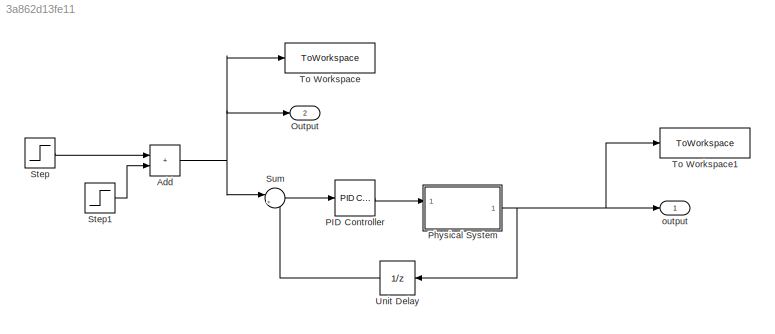
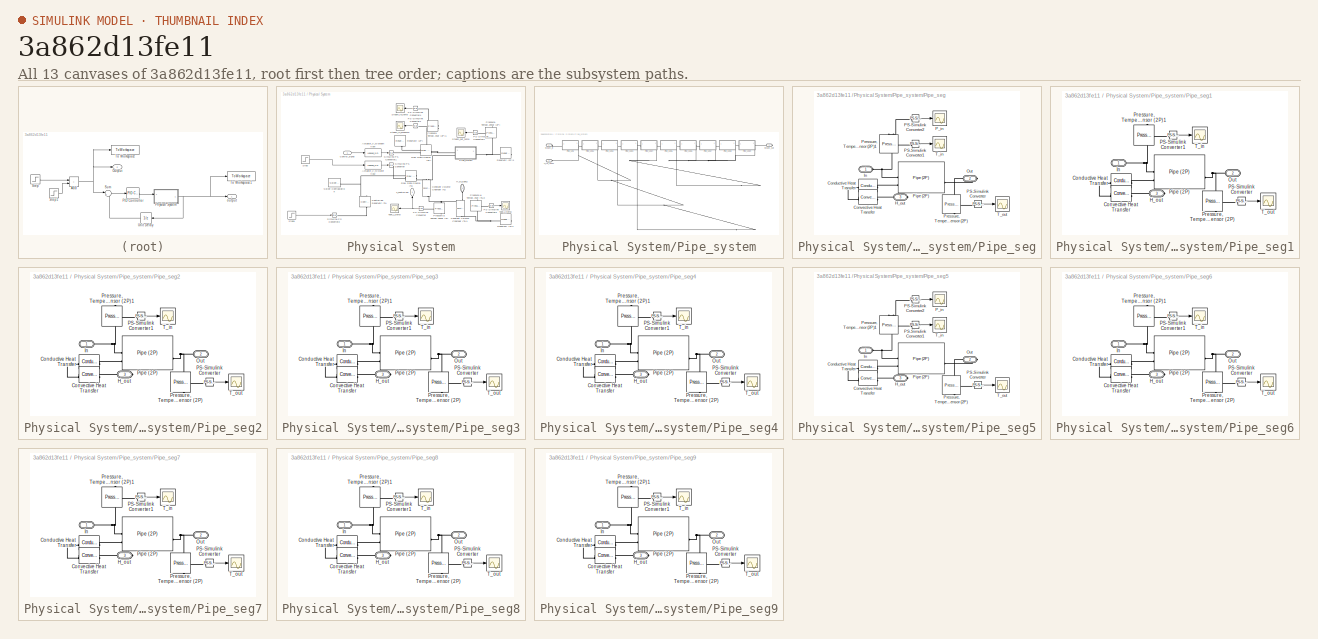
[diagram: thumbnail index - all 13 canvases of the model, root first then tree order]
MODEL slx_3a862d13fe11
KIND model
CONFIG AbsTol = 1e-3
CONFIG EnableMultiTasking = off
CONFIG FixedStep = auto
CONFIG MaxStep = auto
CONFIG MinStep = auto
CONFIG RelTol = 1e-3
CONFIG SampleTimeConstraint = Unconstrained
CONFIG SolverName = ode15s
CONFIG StartTime = 0.0
CONFIG StopTime = 28000
WORKSPACE source: mxarray member
WORKSPACE KC = 0.489262486694
WORKSPACE KI = 0.00370274255893
WORKSPACE Param: Simulink.Parameter (value not decoded)
WORKSPACE h_con_outer = 1250
WORKSPACE k_cond_pipe = 400
WORKSPACE num = 10
WORKSPACE pipe_len = 6.34
WORKSPACE pipe_thick = 0.001
WORKSPACE r_outer = 0.00525
WORKSPACE steam_qual = 0.95
WORKSPACE vap_tconstant = 10
WORKSPACE vol_liq = 24
WORKSPACE water_temp_cold = 20
WORKSPACE water_temp_in = 26
BLOCK [Sum] Add
  IconShape = rectangular
BLOCK [Outport] Output
  Port = 2
  SignalName = SetPoint
BLOCK [Reference] PID Controller  REF=slpidlib/PID Controller
  LibrarySourceBlock = simulink/Continuous/PID Controller
  SourceBlock = slpidlib/PID Controller
  SourceType = PID 1dof
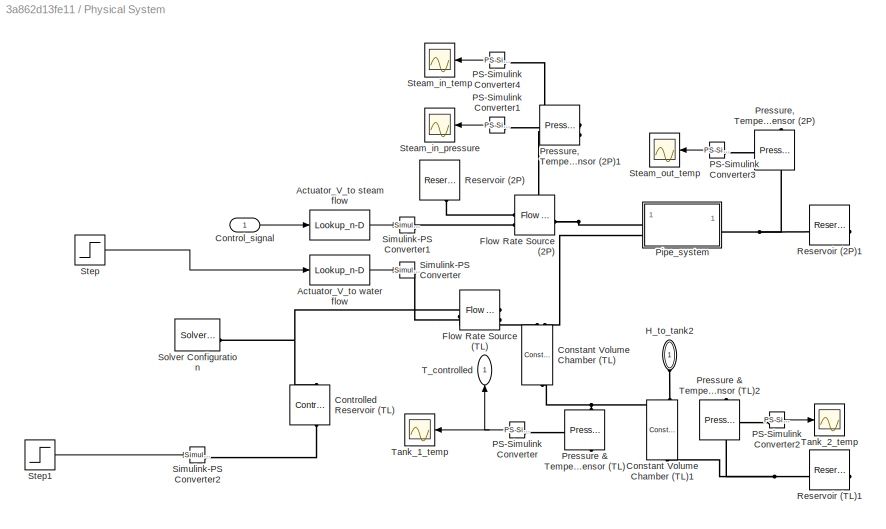
BLOCK [SubSystem] Physical System
BLOCK [Lookup_n-D] Physical System/Actuator_V_to steam flow
  BreakpointsForDimension1 = [1.5 1.75 2.0 2.25 2.5 2.75 3.0]
  InputPortMap = u0
  InternalRulePriority = Speed
  NumberOfTableDimensions = 1
  RndMeth = Simplest
  Table = [0 12.56 41.25 71 117 129 141.08]
BLOCK [Lookup_n-D] Physical System/Actuator_V_to water flow
  BreakpointsForDimension1 = [1.25 1.5 1.75 2.0 2.25 2.5 2.75 3]
  InputPortMap = u0
  InternalRulePriority = Speed
  NumberOfTableDimensions = 1
  RndMeth = Simplest
  Table = [0 1.1 2.04 3.37 4.81 5.79 6.23 6.41]
BLOCK [Reference] Physical System/Constant Volume Chamber (TL)  REF=fl_lib/Thermal Liquid/Elements/Constant Volume
Chamber (TL)
  NameLocation = right
  SourceBlock = fl_lib/Thermal Liquid/Elements/Constant Volume\nChamber (TL)
  SourceType = Constant Volume\nChamber (TL)
BLOCK [Reference] Physical System/Constant Volume Chamber (TL)1  REF=fl_lib/Thermal Liquid/Elements/Constant Volume
Chamber (TL)
  NameLocation = right
  SourceBlock = fl_lib/Thermal Liquid/Elements/Constant Volume\nChamber (TL)
  SourceType = Constant Volume\nChamber (TL)
BLOCK [Inport] Physical System/Control_signal
BLOCK [Reference] Physical System/Controlled Reservoir (TL)  REF=fl_lib/Thermal Liquid/Elements/Controlled Reservoir
(TL)
  NameLocation = right
  SourceBlock = fl_lib/Thermal Liquid/Elements/Controlled Reservoir\n(TL)
  SourceType = Controlled Reservoir\n(TL)
BLOCK [Reference] Physical System/Flow Rate Source (2P)  REF=fl_lib/Two-Phase Fluid/Sources/Flow Rate Source
(2P)
  SourceBlock = fl_lib/Two-Phase Fluid/Sources/Flow Rate Source\n(2P)
  SourceType = Flow Rate Source\n(2P)
BLOCK [Reference] Physical System/Flow Rate Source (TL)  REF=fl_lib/Thermal Liquid/Sources/Flow Rate Source
(TL)
  SourceBlock = fl_lib/Thermal Liquid/Sources/Flow Rate Source\n(TL)
  SourceType = Flow Rate Source\n(TL)
BLOCK [PMIOPort] Physical System/H_to_tank2
  NameLocation = top
  Side = Left
BLOCK [Reference] Physical System/PS-Simulink Converter  REF=nesl_utility/PS-Simulink
Converter
  NameLocation = left
  SourceBlock = nesl_utility/PS-Simulink\nConverter
  SourceType = PS-Simulink\nConverter
BLOCK [Reference] Physical System/PS-Simulink Converter1  REF=nesl_utility/PS-Simulink
Converter
  SourceBlock = nesl_utility/PS-Simulink\nConverter
  SourceType = PS-Simulink\nConverter
BLOCK [Reference] Physical System/PS-Simulink Converter2  REF=nesl_utility/PS-Simulink
Converter
  NameLocation = right
  SourceBlock = nesl_utility/PS-Simulink\nConverter
  SourceType = PS-Simulink\nConverter
BLOCK [Reference] Physical System/PS-Simulink Converter3  REF=nesl_utility/PS-Simulink
Converter
  SourceBlock = nesl_utility/PS-Simulink\nConverter
  SourceType = PS-Simulink\nConverter
BLOCK [Reference] Physical System/PS-Simulink Converter4  REF=nesl_utility/PS-Simulink
Converter
  SourceBlock = nesl_utility/PS-Simulink\nConverter
  SourceType = PS-Simulink\nConverter
BLOCK [SubSystem] Physical System/Pipe_system
BLOCK [PMIOPort] Physical System/Pipe_system/H_to_tank1
  Port = 3
  Side = Left
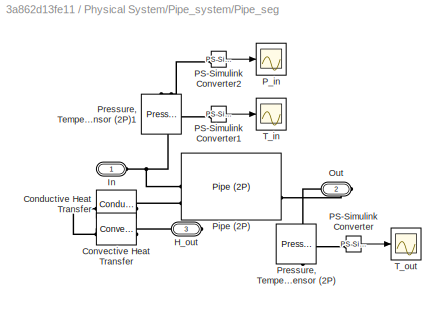
BLOCK [SubSystem] Physical System/Pipe_system/Pipe_seg
  PortSchema = {"entries":[{"content":{"sides":[{"content":{"connectorIds":["LConn1"]},"type":"ConnectorPlacement.EquallySpacedRectSide","uuid":"87d762fd-5aab-4e06-9f00-0f31156aff8f"},{"content":{"connectorIds":["RConn1"],"side":"RIGHT"},"type":"ConnectorPlacement.EquallySpacedRectSide","uuid":"41caf200-f502-42ca-8e97-d54e4cd27955"},{"content":{"side":"TOP"},"type":"ConnectorPlacement.EquallySpacedRectSide","uui...<+379ch>  <repeated x10 — deduplicated; at blocks: Pipe_seg, Pipe_seg1, Pipe_seg2, Pipe_seg3, Pipe_seg4, Pipe_seg5, Pipe_seg6, Pipe_seg7, Pipe_seg8, Pipe_seg9>
BLOCK [Reference] Physical System/Pipe_system/Pipe_seg/Conductive Heat Transfer  REF=fl_lib/Thermal/Thermal Elements/Conductive Heat
Transfer
  SourceBlock = fl_lib/Thermal/Thermal Elements/Conductive Heat\nTransfer
  SourceType = Conductive Heat\nTransfer
BLOCK [Reference] Physical System/Pipe_system/Pipe_seg/Convective Heat Transfer  REF=fl_lib/Thermal/Thermal Elements/Convective Heat
Transfer
  NameLocation = top
  SourceBlock = fl_lib/Thermal/Thermal Elements/Convective Heat\nTransfer
  SourceType = Convective Heat\nTransfer
BLOCK [PMIOPort] Physical System/Pipe_system/Pipe_seg/H_out
  Port = 3
  Side = Right
BLOCK [PMIOPort] Physical System/Pipe_system/Pipe_seg/In
  Side = Left
BLOCK [PMIOPort] Physical System/Pipe_system/Pipe_seg/Out
  Port = 2
  Side = Right
BLOCK [Reference] Physical System/Pipe_system/Pipe_seg/PS-Simulink Converter  REF=nesl_utility/PS-Simulink
Converter
  SourceBlock = nesl_utility/PS-Simulink\nConverter
  SourceType = PS-Simulink\nConverter
BLOCK [Reference] Physical System/Pipe_system/Pipe_seg/PS-Simulink Converter1  REF=nesl_utility/PS-Simulink
Converter
  SourceBlock = nesl_utility/PS-Simulink\nConverter
  SourceType = PS-Simulink\nConverter
BLOCK [Reference] Physical System/Pipe_system/Pipe_seg/PS-Simulink Converter2  REF=nesl_utility/PS-Simulink
Converter
  SourceBlock = nesl_utility/PS-Simulink\nConverter
  SourceType = PS-Simulink\nConverter
BLOCK [Scope] Physical System/Pipe_system/Pipe_seg/P_in
  Floating = off
  NumInputPorts = 1
  ScopeSpecificationString = Simulink.scopes.TimeScopeBlockCfg('CurrentConfiguration', extmgr.ConfigurationSet(extmgr.Configuration('Core','General UI',true),extmgr.Configuration('Core','Source UI',true),extmgr.Configuration('Sources','WiredSimulink',true,'DataLoggingVariableName','ScopeData5'),extmgr.Configuration('Visuals','Time Domain',true,'SerializedDisplays',{struct('MinYLimReal','101.30744','MaxYLimReal','101.48437','Y...<+1565ch>
BLOCK [Reference] Physical System/Pipe_system/Pipe_seg/Pipe (2P)  REF=fl_lib/Two-Phase Fluid/Elements/Pipe (2P)
  SourceBlock = fl_lib/Two-Phase Fluid/Elements/Pipe (2P)
  SourceType = Pipe (2P)
BLOCK [Reference] Physical System/Pipe_system/Pipe_seg/Pressure, Temperature & Internal Energy Sensor (2P)  REF=fl_lib/Two-Phase Fluid/Sensors/Pressure,
Temperature &
Internal Energy
Sensor (2P)
  NameLocation = right
  SourceBlock = fl_lib/Two-Phase Fluid/Sensors/Pressure,\nTemperature &\nInternal Energy\nSensor (2P)
  SourceType = Pressure,\nTemperature &\nInternal Energy\nSensor (2P)
BLOCK [Reference] Physical System/Pipe_system/Pipe_seg/Pressure, Temperature & Internal Energy Sensor (2P)1  REF=fl_lib/Two-Phase Fluid/Sensors/Pressure,
Temperature &
Internal Energy
Sensor (2P)
  NameLocation = right
  SourceBlock = fl_lib/Two-Phase Fluid/Sensors/Pressure,\nTemperature &\nInternal Energy\nSensor (2P)
  SourceType = Pressure,\nTemperature &\nInternal Energy\nSensor (2P)
BLOCK [Scope] Physical System/Pipe_system/Pipe_seg/T_in
  Floating = off
  NumInputPorts = 1
  ScopeSpecificationString = Simulink.scopes.TimeScopeBlockCfg('CurrentConfiguration', extmgr.ConfigurationSet(extmgr.Configuration('Core','General UI',true),extmgr.Configuration('Core','Source UI',true),extmgr.Configuration('Sources','WiredSimulink',true,'DataLoggingVariableName','ScopeData6'),extmgr.Configuration('Visuals','Time Domain',true,'SerializedDisplays',{struct('MinYLimReal','99.66979','MaxYLimReal','102.56528','YL...<+1561ch>
BLOCK [Scope] Physical System/Pipe_system/Pipe_seg/T_out
  Floating = off
  NumInputPorts = 1
  ScopeSpecificationString = Simulink.scopes.TimeScopeBlockCfg('CurrentConfiguration', extmgr.ConfigurationSet(extmgr.Configuration('Core','General UI',true),extmgr.Configuration('Core','Source UI',true),extmgr.Configuration('Sources','WiredSimulink',true,'DataLoggingVariableName','ScopeData1'),extmgr.Configuration('Visuals','Time Domain',true,'SerializedDisplays',{struct('MinYLimReal','77.50383','MaxYLimReal','102.46551','YL...<+1560ch>
BLOCK [SubSystem] Physical System/Pipe_system/Pipe_seg1
BLOCK [Reference] Physical System/Pipe_system/Pipe_seg1/Conductive Heat Transfer  REF=fl_lib/Thermal/Thermal Elements/Conductive Heat
Transfer
  SourceBlock = fl_lib/Thermal/Thermal Elements/Conductive Heat\nTransfer
  SourceType = Conductive Heat\nTransfer
BLOCK [Reference] Physical System/Pipe_system/Pipe_seg1/Convective Heat Transfer  REF=fl_lib/Thermal/Thermal Elements/Convective Heat
Transfer
  NameLocation = top
  SourceBlock = fl_lib/Thermal/Thermal Elements/Convective Heat\nTransfer
  SourceType = Convective Heat\nTransfer
BLOCK [PMIOPort] Physical System/Pipe_system/Pipe_seg1/H_out
  Port = 3
  Side = Right
BLOCK [PMIOPort] Physical System/Pipe_system/Pipe_seg1/In
  Side = Left
BLOCK [PMIOPort] Physical System/Pipe_system/Pipe_seg1/Out
  Port = 2
  Side = Right
BLOCK [Reference] Physical System/Pipe_system/Pipe_seg1/PS-Simulink Converter  REF=nesl_utility/PS-Simulink
Converter
  SourceBlock = nesl_utility/PS-Simulink\nConverter
  SourceType = PS-Simulink\nConverter
BLOCK [Reference] Physical System/Pipe_system/Pipe_seg1/PS-Simulink Converter1  REF=nesl_utility/PS-Simulink
Converter
  SourceBlock = nesl_utility/PS-Simulink\nConverter
  SourceType = PS-Simulink\nConverter
BLOCK [Reference] Physical System/Pipe_system/Pipe_seg1/Pipe (2P)  REF=fl_lib/Two-Phase Fluid/Elements/Pipe (2P)
  SourceBlock = fl_lib/Two-Phase Fluid/Elements/Pipe (2P)
  SourceType = Pipe (2P)
BLOCK [Reference] Physical System/Pipe_system/Pipe_seg1/Pressure, Temperature & Internal Energy Sensor (2P)  REF=fl_lib/Two-Phase Fluid/Sensors/Pressure,
Temperature &
Internal Energy
Sensor (2P)
  NameLocation = right
  SourceBlock = fl_lib/Two-Phase Fluid/Sensors/Pressure,\nTemperature &\nInternal Energy\nSensor (2P)
  SourceType = Pressure,\nTemperature &\nInternal Energy\nSensor (2P)
BLOCK [Reference] Physical System/Pipe_system/Pipe_seg1/Pressure, Temperature & Internal Energy Sensor (2P)1  REF=fl_lib/Two-Phase Fluid/Sensors/Pressure,
Temperature &
Internal Energy
Sensor (2P)
  NameLocation = right
  SourceBlock = fl_lib/Two-Phase Fluid/Sensors/Pressure,\nTemperature &\nInternal Energy\nSensor (2P)
  SourceType = Pressure,\nTemperature &\nInternal Energy\nSensor (2P)
BLOCK [Scope] Physical System/Pipe_system/Pipe_seg1/T_in
  Floating = off
  NumInputPorts = 1
  ScopeSpecificationString = Simulink.scopes.TimeScopeBlockCfg('CurrentConfiguration', extmgr.ConfigurationSet(extmgr.Configuration('Core','General UI',true),extmgr.Configuration('Core','Source UI',true),extmgr.Configuration('Sources','WiredSimulink',true,'DataLoggingVariableName','ScopeData6'),extmgr.Configuration('Visuals','Time Domain',true,'SerializedDisplays',{struct('MinYLimReal','77.50383','MaxYLimReal','102.46551','YL...<+1561ch>
BLOCK [Scope] Physical System/Pipe_system/Pipe_seg1/T_out
  Floating = off
  NumInputPorts = 1
  ScopeSpecificationString = Simulink.scopes.TimeScopeBlockCfg('CurrentConfiguration', extmgr.ConfigurationSet(extmgr.Configuration('Core','General UI',true),extmgr.Configuration('Core','Source UI',true),extmgr.Configuration('Sources','WiredSimulink',true,'DataLoggingVariableName','ScopeData1'),extmgr.Configuration('Visuals','Time Domain',true,'SerializedDisplays',{struct('MinYLimReal','38.29819','MaxYLimReal','84.63353','YLa...<+1600ch>
BLOCK [SubSystem] Physical System/Pipe_system/Pipe_seg2
BLOCK [Reference] Physical System/Pipe_system/Pipe_seg2/Conductive Heat Transfer  REF=fl_lib/Thermal/Thermal Elements/Conductive Heat
Transfer
  SourceBlock = fl_lib/Thermal/Thermal Elements/Conductive Heat\nTransfer
  SourceType = Conductive Heat\nTransfer
BLOCK [Reference] Physical System/Pipe_system/Pipe_seg2/Convective Heat Transfer  REF=fl_lib/Thermal/Thermal Elements/Convective Heat
Transfer
  NameLocation = top
  SourceBlock = fl_lib/Thermal/Thermal Elements/Convective Heat\nTransfer
  SourceType = Convective Heat\nTransfer
BLOCK [PMIOPort] Physical System/Pipe_system/Pipe_seg2/H_out
  Port = 3
  Side = Right
BLOCK [PMIOPort] Physical System/Pipe_system/Pipe_seg2/In
  Side = Left
BLOCK [PMIOPort] Physical System/Pipe_system/Pipe_seg2/Out
  Port = 2
  Side = Right
BLOCK [Reference] Physical System/Pipe_system/Pipe_seg2/PS-Simulink Converter  REF=nesl_utility/PS-Simulink
Converter
  SourceBlock = nesl_utility/PS-Simulink\nConverter
  SourceType = PS-Simulink\nConverter
BLOCK [Reference] Physical System/Pipe_system/Pipe_seg2/PS-Simulink Converter1  REF=nesl_utility/PS-Simulink
Converter
  SourceBlock = nesl_utility/PS-Simulink\nConverter
  SourceType = PS-Simulink\nConverter
BLOCK [Reference] Physical System/Pipe_system/Pipe_seg2/Pipe (2P)  REF=fl_lib/Two-Phase Fluid/Elements/Pipe (2P)
  SourceBlock = fl_lib/Two-Phase Fluid/Elements/Pipe (2P)
  SourceType = Pipe (2P)
BLOCK [Reference] Physical System/Pipe_system/Pipe_seg2/Pressure, Temperature & Internal Energy Sensor (2P)  REF=fl_lib/Two-Phase Fluid/Sensors/Pressure,
Temperature &
Internal Energy
Sensor (2P)
  NameLocation = right
  SourceBlock = fl_lib/Two-Phase Fluid/Sensors/Pressure,\nTemperature &\nInternal Energy\nSensor (2P)
  SourceType = Pressure,\nTemperature &\nInternal Energy\nSensor (2P)
BLOCK [Reference] Physical System/Pipe_system/Pipe_seg2/Pressure, Temperature & Internal Energy Sensor (2P)1  REF=fl_lib/Two-Phase Fluid/Sensors/Pressure,
Temperature &
Internal Energy
Sensor (2P)
  NameLocation = right
  SourceBlock = fl_lib/Two-Phase Fluid/Sensors/Pressure,\nTemperature &\nInternal Energy\nSensor (2P)
  SourceType = Pressure,\nTemperature &\nInternal Energy\nSensor (2P)
BLOCK [Scope] Physical System/Pipe_system/Pipe_seg2/T_in
  Floating = off
  NumInputPorts = 1
  ScopeSpecificationString = Simulink.scopes.TimeScopeBlockCfg('CurrentConfiguration', extmgr.ConfigurationSet(extmgr.Configuration('Core','General UI',true),extmgr.Configuration('Core','Source UI',true),extmgr.Configuration('Sources','WiredSimulink',true,'DataLoggingVariableName','ScopeData6'),extmgr.Configuration('Visuals','Time Domain',true,'SerializedDisplays',{struct('MinYLimReal','76.36855','MaxYLimReal','102.58468','YL...<+1561ch>
BLOCK [Scope] Physical System/Pipe_system/Pipe_seg2/T_out
  Floating = off
  NumInputPorts = 1
  ScopeSpecificationString = Simulink.scopes.TimeScopeBlockCfg('CurrentConfiguration', extmgr.ConfigurationSet(extmgr.Configuration('Core','General UI',true),extmgr.Configuration('Core','Source UI',true),extmgr.Configuration('Sources','WiredSimulink',true,'DataLoggingVariableName','ScopeData1'),extmgr.Configuration('Visuals','Time Domain',true,'SerializedDisplays',{struct('MinYLimReal','28.45175','MaxYLimReal','85.72758','YLa...<+1575ch>
BLOCK [SubSystem] Physical System/Pipe_system/Pipe_seg3
BLOCK [Reference] Physical System/Pipe_system/Pipe_seg3/Conductive Heat Transfer  REF=fl_lib/Thermal/Thermal Elements/Conductive Heat
Transfer
  SourceBlock = fl_lib/Thermal/Thermal Elements/Conductive Heat\nTransfer
  SourceType = Conductive Heat\nTransfer
BLOCK [Reference] Physical System/Pipe_system/Pipe_seg3/Convective Heat Transfer  REF=fl_lib/Thermal/Thermal Elements/Convective Heat
Transfer
  NameLocation = top
  SourceBlock = fl_lib/Thermal/Thermal Elements/Convective Heat\nTransfer
  SourceType = Convective Heat\nTransfer
BLOCK [PMIOPort] Physical System/Pipe_system/Pipe_seg3/H_out
  Port = 3
  Side = Right
BLOCK [PMIOPort] Physical System/Pipe_system/Pipe_seg3/In
  Side = Left
BLOCK [PMIOPort] Physical System/Pipe_system/Pipe_seg3/Out
  Port = 2
  Side = Right
BLOCK [Reference] Physical System/Pipe_system/Pipe_seg3/PS-Simulink Converter  REF=nesl_utility/PS-Simulink
Converter
  SourceBlock = nesl_utility/PS-Simulink\nConverter
  SourceType = PS-Simulink\nConverter
BLOCK [Reference] Physical System/Pipe_system/Pipe_seg3/PS-Simulink Converter1  REF=nesl_utility/PS-Simulink
Converter
  SourceBlock = nesl_utility/PS-Simulink\nConverter
  SourceType = PS-Simulink\nConverter
BLOCK [Reference] Physical System/Pipe_system/Pipe_seg3/Pipe (2P)  REF=fl_lib/Two-Phase Fluid/Elements/Pipe (2P)
  SourceBlock = fl_lib/Two-Phase Fluid/Elements/Pipe (2P)
  SourceType = Pipe (2P)
BLOCK [Reference] Physical System/Pipe_system/Pipe_seg3/Pressure, Temperature & Internal Energy Sensor (2P)  REF=fl_lib/Two-Phase Fluid/Sensors/Pressure,
Temperature &
Internal Energy
Sensor (2P)
  NameLocation = right
  SourceBlock = fl_lib/Two-Phase Fluid/Sensors/Pressure,\nTemperature &\nInternal Energy\nSensor (2P)
  SourceType = Pressure,\nTemperature &\nInternal Energy\nSensor (2P)
BLOCK [Reference] Physical System/Pipe_system/Pipe_seg3/Pressure, Temperature & Internal Energy Sensor (2P)1  REF=fl_lib/Two-Phase Fluid/Sensors/Pressure,
Temperature &
Internal Energy
Sensor (2P)
  NameLocation = right
  SourceBlock = fl_lib/Two-Phase Fluid/Sensors/Pressure,\nTemperature &\nInternal Energy\nSensor (2P)
  SourceType = Pressure,\nTemperature &\nInternal Energy\nSensor (2P)
BLOCK [Scope] Physical System/Pipe_system/Pipe_seg3/T_in
  Floating = off
  NumInputPorts = 1
  ScopeSpecificationString = Simulink.scopes.TimeScopeBlockCfg('CurrentConfiguration', extmgr.ConfigurationSet(extmgr.Configuration('Core','General UI',true),extmgr.Configuration('Core','Source UI',true),extmgr.Configuration('Sources','WiredSimulink',true,'DataLoggingVariableName','ScopeData6'),extmgr.Configuration('Visuals','Time Domain',true,'SerializedDisplays',{struct('MinYLimReal','28.45175','MaxYLimReal','85.72758','YLa...<+1576ch>
BLOCK [Scope] Physical System/Pipe_system/Pipe_seg3/T_out
  Floating = off
  NumInputPorts = 1
  ScopeSpecificationString = Simulink.scopes.TimeScopeBlockCfg('CurrentConfiguration', extmgr.ConfigurationSet(extmgr.Configuration('Core','General UI',true),extmgr.Configuration('Core','Source UI',true),extmgr.Configuration('Sources','WiredSimulink',true,'DataLoggingVariableName','ScopeData1'),extmgr.Configuration('Visuals','Time Domain',true,'SerializedDisplays',{struct('MinYLimReal','23.86648','MaxYLimReal','86.23706','YLa...<+1575ch>
BLOCK [SubSystem] Physical System/Pipe_system/Pipe_seg4
BLOCK [Reference] Physical System/Pipe_system/Pipe_seg4/Conductive Heat Transfer  REF=fl_lib/Thermal/Thermal Elements/Conductive Heat
Transfer
  SourceBlock = fl_lib/Thermal/Thermal Elements/Conductive Heat\nTransfer
  SourceType = Conductive Heat\nTransfer
BLOCK [Reference] Physical System/Pipe_system/Pipe_seg4/Convective Heat Transfer  REF=fl_lib/Thermal/Thermal Elements/Convective Heat
Transfer
  NameLocation = top
  SourceBlock = fl_lib/Thermal/Thermal Elements/Convective Heat\nTransfer
  SourceType = Convective Heat\nTransfer
BLOCK [PMIOPort] Physical System/Pipe_system/Pipe_seg4/H_out
  Port = 3
  Side = Right
BLOCK [PMIOPort] Physical System/Pipe_system/Pipe_seg4/In
  Side = Left
BLOCK [PMIOPort] Physical System/Pipe_system/Pipe_seg4/Out
  Port = 2
  Side = Right
BLOCK [Reference] Physical System/Pipe_system/Pipe_seg4/PS-Simulink Converter  REF=nesl_utility/PS-Simulink
Converter
  SourceBlock = nesl_utility/PS-Simulink\nConverter
  SourceType = PS-Simulink\nConverter
BLOCK [Reference] Physical System/Pipe_system/Pipe_seg4/PS-Simulink Converter1  REF=nesl_utility/PS-Simulink
Converter
  SourceBlock = nesl_utility/PS-Simulink\nConverter
  SourceType = PS-Simulink\nConverter
BLOCK [Reference] Physical System/Pipe_system/Pipe_seg4/Pipe (2P)  REF=fl_lib/Two-Phase Fluid/Elements/Pipe (2P)
  SourceBlock = fl_lib/Two-Phase Fluid/Elements/Pipe (2P)
  SourceType = Pipe (2P)
BLOCK [Reference] Physical System/Pipe_system/Pipe_seg4/Pressure, Temperature & Internal Energy Sensor (2P)  REF=fl_lib/Two-Phase Fluid/Sensors/Pressure,
Temperature &
Internal Energy
Sensor (2P)
  NameLocation = right
  SourceBlock = fl_lib/Two-Phase Fluid/Sensors/Pressure,\nTemperature &\nInternal Energy\nSensor (2P)
  SourceType = Pressure,\nTemperature &\nInternal Energy\nSensor (2P)
BLOCK [Reference] Physical System/Pipe_system/Pipe_seg4/Pressure, Temperature & Internal Energy Sensor (2P)1  REF=fl_lib/Two-Phase Fluid/Sensors/Pressure,
Temperature &
Internal Energy
Sensor (2P)
  NameLocation = right
  SourceBlock = fl_lib/Two-Phase Fluid/Sensors/Pressure,\nTemperature &\nInternal Energy\nSensor (2P)
  SourceType = Pressure,\nTemperature &\nInternal Energy\nSensor (2P)
BLOCK [Scope] Physical System/Pipe_system/Pipe_seg4/T_in
  Floating = off
  NumInputPorts = 1
  ScopeSpecificationString = Simulink.scopes.TimeScopeBlockCfg('CurrentConfiguration', extmgr.ConfigurationSet(extmgr.Configuration('Core','General UI',true),extmgr.Configuration('Core','Source UI',true),extmgr.Configuration('Sources','WiredSimulink',true,'DataLoggingVariableName','ScopeData6'),extmgr.Configuration('Visuals','Time Domain',true,'SerializedDisplays',{struct('MinYLimReal','32.66579','MaxYLimReal','35.09319','YLa...<+1576ch>
BLOCK [Scope] Physical System/Pipe_system/Pipe_seg4/T_out
  Floating = off
  NumInputPorts = 1
  ScopeSpecificationString = Simulink.scopes.TimeScopeBlockCfg('CurrentConfiguration', extmgr.ConfigurationSet(extmgr.Configuration('Core','General UI',true),extmgr.Configuration('Core','Source UI',true),extmgr.Configuration('Sources','WiredSimulink',true,'DataLoggingVariableName','ScopeData1'),extmgr.Configuration('Visuals','Time Domain',true,'SerializedDisplays',{struct('MinYLimReal','21.71713','MaxYLimReal','86.47587','YLa...<+1575ch>
BLOCK [SubSystem] Physical System/Pipe_system/Pipe_seg5
BLOCK [Reference] Physical System/Pipe_system/Pipe_seg5/Conductive Heat Transfer  REF=fl_lib/Thermal/Thermal Elements/Conductive Heat
Transfer
  SourceBlock = fl_lib/Thermal/Thermal Elements/Conductive Heat\nTransfer
  SourceType = Conductive Heat\nTransfer
BLOCK [Reference] Physical System/Pipe_system/Pipe_seg5/Convective Heat Transfer  REF=fl_lib/Thermal/Thermal Elements/Convective Heat
Transfer
  NameLocation = top
  SourceBlock = fl_lib/Thermal/Thermal Elements/Convective Heat\nTransfer
  SourceType = Convective Heat\nTransfer
BLOCK [PMIOPort] Physical System/Pipe_system/Pipe_seg5/H_out
  Port = 3
  Side = Right
BLOCK [PMIOPort] Physical System/Pipe_system/Pipe_seg5/In
  Side = Left
BLOCK [PMIOPort] Physical System/Pipe_system/Pipe_seg5/Out
  Port = 2
  Side = Right
BLOCK [Reference] Physical System/Pipe_system/Pipe_seg5/PS-Simulink Converter  REF=nesl_utility/PS-Simulink
Converter
  SourceBlock = nesl_utility/PS-Simulink\nConverter
  SourceType = PS-Simulink\nConverter
BLOCK [Reference] Physical System/Pipe_system/Pipe_seg5/PS-Simulink Converter1  REF=nesl_utility/PS-Simulink
Converter
  SourceBlock = nesl_utility/PS-Simulink\nConverter
  SourceType = PS-Simulink\nConverter
BLOCK [Reference] Physical System/Pipe_system/Pipe_seg5/PS-Simulink Converter2  REF=nesl_utility/PS-Simulink
Converter
  SourceBlock = nesl_utility/PS-Simulink\nConverter
  SourceType = PS-Simulink\nConverter
BLOCK [Scope] Physical System/Pipe_system/Pipe_seg5/P_in
  Floating = off
  NumInputPorts = 1
  ScopeSpecificationString = Simulink.scopes.TimeScopeBlockCfg('CurrentConfiguration', extmgr.ConfigurationSet(extmgr.Configuration('Core','General UI',true),extmgr.Configuration('Core','Source UI',true),extmgr.Configuration('Sources','WiredSimulink',true,'DataLoggingVariableName','ScopeData5'),extmgr.Configuration('Visuals','Time Domain',true,'SerializedDisplays',{struct('MinYLimReal','101.30744','MaxYLimReal','101.48437','Y...<+1565ch>
BLOCK [Reference] Physical System/Pipe_system/Pipe_seg5/Pipe (2P)  REF=fl_lib/Two-Phase Fluid/Elements/Pipe (2P)
  SourceBlock = fl_lib/Two-Phase Fluid/Elements/Pipe (2P)
  SourceType = Pipe (2P)
BLOCK [Reference] Physical System/Pipe_system/Pipe_seg5/Pressure, Temperature & Internal Energy Sensor (2P)  REF=fl_lib/Two-Phase Fluid/Sensors/Pressure,
Temperature &
Internal Energy
Sensor (2P)
  NameLocation = right
  SourceBlock = fl_lib/Two-Phase Fluid/Sensors/Pressure,\nTemperature &\nInternal Energy\nSensor (2P)
  SourceType = Pressure,\nTemperature &\nInternal Energy\nSensor (2P)
BLOCK [Reference] Physical System/Pipe_system/Pipe_seg5/Pressure, Temperature & Internal Energy Sensor (2P)1  REF=fl_lib/Two-Phase Fluid/Sensors/Pressure,
Temperature &
Internal Energy
Sensor (2P)
  NameLocation = right
  SourceBlock = fl_lib/Two-Phase Fluid/Sensors/Pressure,\nTemperature &\nInternal Energy\nSensor (2P)
  SourceType = Pressure,\nTemperature &\nInternal Energy\nSensor (2P)
BLOCK [Scope] Physical System/Pipe_system/Pipe_seg5/T_in
  Floating = off
  NumInputPorts = 1
  ScopeSpecificationString = Simulink.scopes.TimeScopeBlockCfg('CurrentConfiguration', extmgr.ConfigurationSet(extmgr.Configuration('Core','General UI',true),extmgr.Configuration('Core','Source UI',true),extmgr.Configuration('Sources','WiredSimulink',true,'DataLoggingVariableName','ScopeData6'),extmgr.Configuration('Visuals','Time Domain',true,'SerializedDisplays',{struct('MinYLimReal','99.66979','MaxYLimReal','102.56528','YL...<+1561ch>
BLOCK [Scope] Physical System/Pipe_system/Pipe_seg5/T_out
  Floating = off
  NumInputPorts = 1
  ScopeSpecificationString = Simulink.scopes.TimeScopeBlockCfg('CurrentConfiguration', extmgr.ConfigurationSet(extmgr.Configuration('Core','General UI',true),extmgr.Configuration('Core','Source UI',true),extmgr.Configuration('Sources','WiredSimulink',true,'DataLoggingVariableName','ScopeData1'),extmgr.Configuration('Visuals','Time Domain',true,'SerializedDisplays',{struct('MinYLimReal','77.50383','MaxYLimReal','102.46551','YL...<+1560ch>
BLOCK [SubSystem] Physical System/Pipe_system/Pipe_seg6
BLOCK [Reference] Physical System/Pipe_system/Pipe_seg6/Conductive Heat Transfer  REF=fl_lib/Thermal/Thermal Elements/Conductive Heat
Transfer
  SourceBlock = fl_lib/Thermal/Thermal Elements/Conductive Heat\nTransfer
  SourceType = Conductive Heat\nTransfer
BLOCK [Reference] Physical System/Pipe_system/Pipe_seg6/Convective Heat Transfer  REF=fl_lib/Thermal/Thermal Elements/Convective Heat
Transfer
  NameLocation = top
  SourceBlock = fl_lib/Thermal/Thermal Elements/Convective Heat\nTransfer
  SourceType = Convective Heat\nTransfer
BLOCK [PMIOPort] Physical System/Pipe_system/Pipe_seg6/H_out
  Port = 3
  Side = Right
BLOCK [PMIOPort] Physical System/Pipe_system/Pipe_seg6/In
  Side = Left
BLOCK [PMIOPort] Physical System/Pipe_system/Pipe_seg6/Out
  Port = 2
  Side = Right
BLOCK [Reference] Physical System/Pipe_system/Pipe_seg6/PS-Simulink Converter  REF=nesl_utility/PS-Simulink
Converter
  SourceBlock = nesl_utility/PS-Simulink\nConverter
  SourceType = PS-Simulink\nConverter
BLOCK [Reference] Physical System/Pipe_system/Pipe_seg6/PS-Simulink Converter1  REF=nesl_utility/PS-Simulink
Converter
  SourceBlock = nesl_utility/PS-Simulink\nConverter
  SourceType = PS-Simulink\nConverter
BLOCK [Reference] Physical System/Pipe_system/Pipe_seg6/Pipe (2P)  REF=fl_lib/Two-Phase Fluid/Elements/Pipe (2P)
  SourceBlock = fl_lib/Two-Phase Fluid/Elements/Pipe (2P)
  SourceType = Pipe (2P)
BLOCK [Reference] Physical System/Pipe_system/Pipe_seg6/Pressure, Temperature & Internal Energy Sensor (2P)  REF=fl_lib/Two-Phase Fluid/Sensors/Pressure,
Temperature &
Internal Energy
Sensor (2P)
  NameLocation = right
  SourceBlock = fl_lib/Two-Phase Fluid/Sensors/Pressure,\nTemperature &\nInternal Energy\nSensor (2P)
  SourceType = Pressure,\nTemperature &\nInternal Energy\nSensor (2P)
BLOCK [Reference] Physical System/Pipe_system/Pipe_seg6/Pressure, Temperature & Internal Energy Sensor (2P)1  REF=fl_lib/Two-Phase Fluid/Sensors/Pressure,
Temperature &
Internal Energy
Sensor (2P)
  NameLocation = right
  SourceBlock = fl_lib/Two-Phase Fluid/Sensors/Pressure,\nTemperature &\nInternal Energy\nSensor (2P)
  SourceType = Pressure,\nTemperature &\nInternal Energy\nSensor (2P)
BLOCK [Scope] Physical System/Pipe_system/Pipe_seg6/T_in
  Floating = off
  NumInputPorts = 1
  ScopeSpecificationString = Simulink.scopes.TimeScopeBlockCfg('CurrentConfiguration', extmgr.ConfigurationSet(extmgr.Configuration('Core','General UI',true),extmgr.Configuration('Core','Source UI',true),extmgr.Configuration('Sources','WiredSimulink',true,'DataLoggingVariableName','ScopeData6'),extmgr.Configuration('Visuals','Time Domain',true,'SerializedDisplays',{struct('MinYLimReal','77.50383','MaxYLimReal','102.46551','YL...<+1561ch>
BLOCK [Scope] Physical System/Pipe_system/Pipe_seg6/T_out
  Floating = off
  NumInputPorts = 1
  ScopeSpecificationString = Simulink.scopes.TimeScopeBlockCfg('CurrentConfiguration', extmgr.ConfigurationSet(extmgr.Configuration('Core','General UI',true),extmgr.Configuration('Core','Source UI',true),extmgr.Configuration('Sources','WiredSimulink',true,'DataLoggingVariableName','ScopeData1'),extmgr.Configuration('Visuals','Time Domain',true,'SerializedDisplays',{struct('MinYLimReal','38.29819','MaxYLimReal','84.63353','YLa...<+1600ch>
BLOCK [SubSystem] Physical System/Pipe_system/Pipe_seg7
BLOCK [Reference] Physical System/Pipe_system/Pipe_seg7/Conductive Heat Transfer  REF=fl_lib/Thermal/Thermal Elements/Conductive Heat
Transfer
  SourceBlock = fl_lib/Thermal/Thermal Elements/Conductive Heat\nTransfer
  SourceType = Conductive Heat\nTransfer
BLOCK [Reference] Physical System/Pipe_system/Pipe_seg7/Convective Heat Transfer  REF=fl_lib/Thermal/Thermal Elements/Convective Heat
Transfer
  NameLocation = top
  SourceBlock = fl_lib/Thermal/Thermal Elements/Convective Heat\nTransfer
  SourceType = Convective Heat\nTransfer
BLOCK [PMIOPort] Physical System/Pipe_system/Pipe_seg7/H_out
  Port = 3
  Side = Right
BLOCK [PMIOPort] Physical System/Pipe_system/Pipe_seg7/In
  Side = Left
BLOCK [PMIOPort] Physical System/Pipe_system/Pipe_seg7/Out
  Port = 2
  Side = Right
BLOCK [Reference] Physical System/Pipe_system/Pipe_seg7/PS-Simulink Converter  REF=nesl_utility/PS-Simulink
Converter
  SourceBlock = nesl_utility/PS-Simulink\nConverter
  SourceType = PS-Simulink\nConverter
BLOCK [Reference] Physical System/Pipe_system/Pipe_seg7/PS-Simulink Converter1  REF=nesl_utility/PS-Simulink
Converter
  SourceBlock = nesl_utility/PS-Simulink\nConverter
  SourceType = PS-Simulink\nConverter
BLOCK [Reference] Physical System/Pipe_system/Pipe_seg7/Pipe (2P)  REF=fl_lib/Two-Phase Fluid/Elements/Pipe (2P)
  SourceBlock = fl_lib/Two-Phase Fluid/Elements/Pipe (2P)
  SourceType = Pipe (2P)
BLOCK [Reference] Physical System/Pipe_system/Pipe_seg7/Pressure, Temperature & Internal Energy Sensor (2P)  REF=fl_lib/Two-Phase Fluid/Sensors/Pressure,
Temperature &
Internal Energy
Sensor (2P)
  NameLocation = right
  SourceBlock = fl_lib/Two-Phase Fluid/Sensors/Pressure,\nTemperature &\nInternal Energy\nSensor (2P)
  SourceType = Pressure,\nTemperature &\nInternal Energy\nSensor (2P)
BLOCK [Reference] Physical System/Pipe_system/Pipe_seg7/Pressure, Temperature & Internal Energy Sensor (2P)1  REF=fl_lib/Two-Phase Fluid/Sensors/Pressure,
Temperature &
Internal Energy
Sensor (2P)
  NameLocation = right
  SourceBlock = fl_lib/Two-Phase Fluid/Sensors/Pressure,\nTemperature &\nInternal Energy\nSensor (2P)
  SourceType = Pressure,\nTemperature &\nInternal Energy\nSensor (2P)
BLOCK [Scope] Physical System/Pipe_system/Pipe_seg7/T_in
  Floating = off
  NumInputPorts = 1
  ScopeSpecificationString = Simulink.scopes.TimeScopeBlockCfg('CurrentConfiguration', extmgr.ConfigurationSet(extmgr.Configuration('Core','General UI',true),extmgr.Configuration('Core','Source UI',true),extmgr.Configuration('Sources','WiredSimulink',true,'DataLoggingVariableName','ScopeData6'),extmgr.Configuration('Visuals','Time Domain',true,'SerializedDisplays',{struct('MinYLimReal','76.36855','MaxYLimReal','102.58468','YL...<+1561ch>
BLOCK [Scope] Physical System/Pipe_system/Pipe_seg7/T_out
  Floating = off
  NumInputPorts = 1
  ScopeSpecificationString = Simulink.scopes.TimeScopeBlockCfg('CurrentConfiguration', extmgr.ConfigurationSet(extmgr.Configuration('Core','General UI',true),extmgr.Configuration('Core','Source UI',true),extmgr.Configuration('Sources','WiredSimulink',true,'DataLoggingVariableName','ScopeData1'),extmgr.Configuration('Visuals','Time Domain',true,'SerializedDisplays',{struct('MinYLimReal','28.45175','MaxYLimReal','85.72758','YLa...<+1575ch>
BLOCK [SubSystem] Physical System/Pipe_system/Pipe_seg8
BLOCK [Reference] Physical System/Pipe_system/Pipe_seg8/Conductive Heat Transfer  REF=fl_lib/Thermal/Thermal Elements/Conductive Heat
Transfer
  SourceBlock = fl_lib/Thermal/Thermal Elements/Conductive Heat\nTransfer
  SourceType = Conductive Heat\nTransfer
BLOCK [Reference] Physical System/Pipe_system/Pipe_seg8/Convective Heat Transfer  REF=fl_lib/Thermal/Thermal Elements/Convective Heat
Transfer
  NameLocation = top
  SourceBlock = fl_lib/Thermal/Thermal Elements/Convective Heat\nTransfer
  SourceType = Convective Heat\nTransfer
BLOCK [PMIOPort] Physical System/Pipe_system/Pipe_seg8/H_out
  Port = 3
  Side = Right
BLOCK [PMIOPort] Physical System/Pipe_system/Pipe_seg8/In
  Side = Left
BLOCK [PMIOPort] Physical System/Pipe_system/Pipe_seg8/Out
  Port = 2
  Side = Right
BLOCK [Reference] Physical System/Pipe_system/Pipe_seg8/PS-Simulink Converter  REF=nesl_utility/PS-Simulink
Converter
  SourceBlock = nesl_utility/PS-Simulink\nConverter
  SourceType = PS-Simulink\nConverter
BLOCK [Reference] Physical System/Pipe_system/Pipe_seg8/PS-Simulink Converter1  REF=nesl_utility/PS-Simulink
Converter
  SourceBlock = nesl_utility/PS-Simulink\nConverter
  SourceType = PS-Simulink\nConverter
BLOCK [Reference] Physical System/Pipe_system/Pipe_seg8/Pipe (2P)  REF=fl_lib/Two-Phase Fluid/Elements/Pipe (2P)
  SourceBlock = fl_lib/Two-Phase Fluid/Elements/Pipe (2P)
  SourceType = Pipe (2P)
BLOCK [Reference] Physical System/Pipe_system/Pipe_seg8/Pressure, Temperature & Internal Energy Sensor (2P)  REF=fl_lib/Two-Phase Fluid/Sensors/Pressure,
Temperature &
Internal Energy
Sensor (2P)
  NameLocation = right
  SourceBlock = fl_lib/Two-Phase Fluid/Sensors/Pressure,\nTemperature &\nInternal Energy\nSensor (2P)
  SourceType = Pressure,\nTemperature &\nInternal Energy\nSensor (2P)
BLOCK [Reference] Physical System/Pipe_system/Pipe_seg8/Pressure, Temperature & Internal Energy Sensor (2P)1  REF=fl_lib/Two-Phase Fluid/Sensors/Pressure,
Temperature &
Internal Energy
Sensor (2P)
  NameLocation = right
  SourceBlock = fl_lib/Two-Phase Fluid/Sensors/Pressure,\nTemperature &\nInternal Energy\nSensor (2P)
  SourceType = Pressure,\nTemperature &\nInternal Energy\nSensor (2P)
BLOCK [Scope] Physical System/Pipe_system/Pipe_seg8/T_in
  Floating = off
  NumInputPorts = 1
  ScopeSpecificationString = Simulink.scopes.TimeScopeBlockCfg('CurrentConfiguration', extmgr.ConfigurationSet(extmgr.Configuration('Core','General UI',true),extmgr.Configuration('Core','Source UI',true),extmgr.Configuration('Sources','WiredSimulink',true,'DataLoggingVariableName','ScopeData6'),extmgr.Configuration('Visuals','Time Domain',true,'SerializedDisplays',{struct('MinYLimReal','28.45175','MaxYLimReal','85.72758','YLa...<+1576ch>
BLOCK [Scope] Physical System/Pipe_system/Pipe_seg8/T_out
  Floating = off
  NumInputPorts = 1
  ScopeSpecificationString = Simulink.scopes.TimeScopeBlockCfg('CurrentConfiguration', extmgr.ConfigurationSet(extmgr.Configuration('Core','General UI',true),extmgr.Configuration('Core','Source UI',true),extmgr.Configuration('Sources','WiredSimulink',true,'DataLoggingVariableName','ScopeData1'),extmgr.Configuration('Visuals','Time Domain',true,'SerializedDisplays',{struct('MinYLimReal','23.86648','MaxYLimReal','86.23706','YLa...<+1575ch>
BLOCK [SubSystem] Physical System/Pipe_system/Pipe_seg9
BLOCK [Reference] Physical System/Pipe_system/Pipe_seg9/Conductive Heat Transfer  REF=fl_lib/Thermal/Thermal Elements/Conductive Heat
Transfer
  SourceBlock = fl_lib/Thermal/Thermal Elements/Conductive Heat\nTransfer
  SourceType = Conductive Heat\nTransfer
BLOCK [Reference] Physical System/Pipe_system/Pipe_seg9/Convective Heat Transfer  REF=fl_lib/Thermal/Thermal Elements/Convective Heat
Transfer
  NameLocation = top
  SourceBlock = fl_lib/Thermal/Thermal Elements/Convective Heat\nTransfer
  SourceType = Convective Heat\nTransfer
BLOCK [PMIOPort] Physical System/Pipe_system/Pipe_seg9/H_out
  Port = 3
  Side = Right
BLOCK [PMIOPort] Physical System/Pipe_system/Pipe_seg9/In
  Side = Left
BLOCK [PMIOPort] Physical System/Pipe_system/Pipe_seg9/Out
  Port = 2
  Side = Right
BLOCK [Reference] Physical System/Pipe_system/Pipe_seg9/PS-Simulink Converter  REF=nesl_utility/PS-Simulink
Converter
  SourceBlock = nesl_utility/PS-Simulink\nConverter
  SourceType = PS-Simulink\nConverter
BLOCK [Reference] Physical System/Pipe_system/Pipe_seg9/PS-Simulink Converter1  REF=nesl_utility/PS-Simulink
Converter
  SourceBlock = nesl_utility/PS-Simulink\nConverter
  SourceType = PS-Simulink\nConverter
BLOCK [Reference] Physical System/Pipe_system/Pipe_seg9/Pipe (2P)  REF=fl_lib/Two-Phase Fluid/Elements/Pipe (2P)
  SourceBlock = fl_lib/Two-Phase Fluid/Elements/Pipe (2P)
  SourceType = Pipe (2P)
BLOCK [Reference] Physical System/Pipe_system/Pipe_seg9/Pressure, Temperature & Internal Energy Sensor (2P)  REF=fl_lib/Two-Phase Fluid/Sensors/Pressure,
Temperature &
Internal Energy
Sensor (2P)
  NameLocation = right
  SourceBlock = fl_lib/Two-Phase Fluid/Sensors/Pressure,\nTemperature &\nInternal Energy\nSensor (2P)
  SourceType = Pressure,\nTemperature &\nInternal Energy\nSensor (2P)
BLOCK [Reference] Physical System/Pipe_system/Pipe_seg9/Pressure, Temperature & Internal Energy Sensor (2P)1  REF=fl_lib/Two-Phase Fluid/Sensors/Pressure,
Temperature &
Internal Energy
Sensor (2P)
  NameLocation = right
  SourceBlock = fl_lib/Two-Phase Fluid/Sensors/Pressure,\nTemperature &\nInternal Energy\nSensor (2P)
  SourceType = Pressure,\nTemperature &\nInternal Energy\nSensor (2P)
BLOCK [Scope] Physical System/Pipe_system/Pipe_seg9/T_in
  Floating = off
  NumInputPorts = 1
  ScopeSpecificationString = Simulink.scopes.TimeScopeBlockCfg('CurrentConfiguration', extmgr.ConfigurationSet(extmgr.Configuration('Core','General UI',true),extmgr.Configuration('Core','Source UI',true),extmgr.Configuration('Sources','WiredSimulink',true,'DataLoggingVariableName','ScopeData6'),extmgr.Configuration('Visuals','Time Domain',true,'SerializedDisplays',{struct('MinYLimReal','32.66579','MaxYLimReal','35.09319','YLa...<+1576ch>
BLOCK [Scope] Physical System/Pipe_system/Pipe_seg9/T_out
  Floating = off
  NumInputPorts = 1
  ScopeSpecificationString = Simulink.scopes.TimeScopeBlockCfg('CurrentConfiguration', extmgr.ConfigurationSet(extmgr.Configuration('Core','General UI',true),extmgr.Configuration('Core','Source UI',true),extmgr.Configuration('Sources','WiredSimulink',true,'DataLoggingVariableName','ScopeData1'),extmgr.Configuration('Visuals','Time Domain',true,'SerializedDisplays',{struct('MinYLimReal','21.71713','MaxYLimReal','86.47587','YLa...<+1575ch>
BLOCK [PMIOPort] Physical System/Pipe_system/Steam_in
  Side = Left
BLOCK [PMIOPort] Physical System/Pipe_system/Steam_out
  Port = 2
  Side = Right
BLOCK [Reference] Physical System/Pressure & Temperature Sensor (TL)  REF=fl_lib/Thermal Liquid/Sensors/Pressure &
Temperature Sensor
(TL)
  NameLocation = right
  SourceBlock = fl_lib/Thermal Liquid/Sensors/Pressure &\nTemperature Sensor\n(TL)
  SourceType = Pressure &\nTemperature Sensor\n(TL)
BLOCK [Reference] Physical System/Pressure & Temperature Sensor (TL)2  REF=fl_lib/Thermal Liquid/Sensors/Pressure &
Temperature Sensor
(TL)
  NameLocation = right
  SourceBlock = fl_lib/Thermal Liquid/Sensors/Pressure &\nTemperature Sensor\n(TL)
  SourceType = Pressure &\nTemperature Sensor\n(TL)
BLOCK [Reference] Physical System/Pressure, Temperature & Internal Energy Sensor (2P)  REF=fl_lib/Two-Phase Fluid/Sensors/Pressure,
Temperature &
Internal Energy
Sensor (2P)
  NameLocation = right
  SourceBlock = fl_lib/Two-Phase Fluid/Sensors/Pressure,\nTemperature &\nInternal Energy\nSensor (2P)
  SourceType = Pressure,\nTemperature &\nInternal Energy\nSensor (2P)
BLOCK [Reference] Physical System/Pressure, Temperature & Internal Energy Sensor (2P)1  REF=fl_lib/Two-Phase Fluid/Sensors/Pressure,
Temperature &
Internal Energy
Sensor (2P)
  NameLocation = top
  SourceBlock = fl_lib/Two-Phase Fluid/Sensors/Pressure,\nTemperature &\nInternal Energy\nSensor (2P)
  SourceType = Pressure,\nTemperature &\nInternal Energy\nSensor (2P)
BLOCK [Reference] Physical System/Reservoir (2P)  REF=fl_lib/Two-Phase Fluid/Elements/Reservoir (2P)
  NameLocation = left
  SourceBlock = fl_lib/Two-Phase Fluid/Elements/Reservoir (2P)
  SourceType = Reservoir (2P)
BLOCK [Reference] Physical System/Reservoir (2P)1  REF=fl_lib/Two-Phase Fluid/Elements/Reservoir (2P)
  NameLocation = top
  SourceBlock = fl_lib/Two-Phase Fluid/Elements/Reservoir (2P)
  SourceType = Reservoir (2P)
BLOCK [Reference] Physical System/Reservoir (TL)1  REF=fl_lib/Thermal Liquid/Elements/Reservoir (TL)
  NameLocation = top
  SourceBlock = fl_lib/Thermal Liquid/Elements/Reservoir (TL)
  SourceType = Reservoir (TL)
BLOCK [Reference] Physical System/Simulink-PS Converter  REF=nesl_utility/Simulink-PS
Converter
  NameLocation = right
  SourceBlock = nesl_utility/Simulink-PS\nConverter
  SourceType = Simulink-PS\nConverter
BLOCK [Reference] Physical System/Simulink-PS Converter1  REF=nesl_utility/Simulink-PS
Converter
  NameLocation = right
  SourceBlock = nesl_utility/Simulink-PS\nConverter
  SourceType = Simulink-PS\nConverter
BLOCK [Reference] Physical System/Simulink-PS Converter2  REF=nesl_utility/Simulink-PS
Converter
  SourceBlock = nesl_utility/Simulink-PS\nConverter
  SourceType = Simulink-PS\nConverter
BLOCK [Reference] Physical System/Solver Configuration  REF=nesl_utility/Solver
Configuration
  SourceBlock = nesl_utility/Solver\nConfiguration
  SourceType = Solver\nConfiguration
BLOCK [Scope] Physical System/Steam_in_pressure
  Floating = off
  NameLocation = top
  NumInputPorts = 1
  ScopeSpecificationString = Simulink.scopes.TimeScopeBlockCfg('CurrentConfiguration', extmgr.ConfigurationSet(extmgr.Configuration('Core','General UI',true),extmgr.Configuration('Core','Source UI',true),extmgr.Configuration('Sources','WiredSimulink',true,'DataLoggingVariableName','ScopeData4'),extmgr.Configuration('Visuals','Time Domain',true,'SerializedDisplays',{struct('MinYLimReal','97.01674','MaxYLimReal','140.10999','YL...<+1567ch>
BLOCK [Scope] Physical System/Steam_in_temp
  Floating = off
  NameLocation = top
  NumInputPorts = 1
  ScopeSpecificationString = Simulink.scopes.TimeScopeBlockCfg('CurrentConfiguration', extmgr.ConfigurationSet(extmgr.Configuration('Core','General UI',true),extmgr.Configuration('Core','Source UI',true),extmgr.Configuration('Sources','WiredSimulink',true,'DataLoggingVariableName','ScopeData1'),extmgr.Configuration('Visuals','Time Domain',true,'SerializedDisplays',{struct('MinYLimReal','35.17864','MaxYLimReal','116.48923','YL...<+1539ch>
BLOCK [Scope] Physical System/Steam_out_temp
  Floating = off
  NameLocation = top
  NumInputPorts = 1
  ScopeSpecificationString = Simulink.scopes.TimeScopeBlockCfg('CurrentConfiguration', extmgr.ConfigurationSet(extmgr.Configuration('Core','General UI',true),extmgr.Configuration('Core','Source UI',true),extmgr.Configuration('Sources','WiredSimulink',true,'DataLoggingVariableName','ScopeData1'),extmgr.Configuration('Visuals','Time Domain',true,'SerializedDisplays',{struct('MinYLimReal','21.207','MaxYLimReal','108.89654','YLab...<+1531ch>
BLOCK [Step] Physical System/Step
  After = 2.2
  Before = 3
  SampleTime = 0
  Time = 19000
BLOCK [Step] Physical System/Step1
  After = 293.15
  Before = 299.15
  SampleTime = 0
  Time = 23000
BLOCK [Outport] Physical System/T_controlled
  NameLocation = top
BLOCK [Scope] Physical System/Tank_1_temp
  Floating = off
  NameLocation = top
  NumInputPorts = 1
  ScopeSpecificationString = Simulink.scopes.TimeScopeBlockCfg('CurrentConfiguration', extmgr.ConfigurationSet(extmgr.Configuration('Core','General UI',true),extmgr.Configuration('Core','Source UI',true),extmgr.Configuration('Sources','WiredSimulink',true),extmgr.Configuration('Visuals','Time Domain',true,'SerializedDisplays',{struct('MinYLimReal','26.44104','MaxYLimReal','37.11794','YLabelReal','','MinYLimMag','26.44104','Ma...<+1514ch>
BLOCK [Scope] Physical System/Tank_2_temp
  Floating = off
  NameLocation = top
  NumInputPorts = 1
  ScopeSpecificationString = Simulink.scopes.TimeScopeBlockCfg('CurrentConfiguration', extmgr.ConfigurationSet(extmgr.Configuration('Core','General UI',true),extmgr.Configuration('Core','Source UI',true),extmgr.Configuration('Sources','WiredSimulink',true,'DataLoggingVariableName','ScopeData3'),extmgr.Configuration('Visuals','Time Domain',true,'SerializedDisplays',{struct('MinYLimReal','29.14901','MaxYLimReal','37.65888','YLa...<+1565ch>
BLOCK [Step] Step
  After = 34
  Before = 29
  SampleTime = 0
  Time = 8000
BLOCK [Step] Step1
  After = -5
  SampleTime = 0
  Time = 15000
BLOCK [Sum] Sum
  Inputs = |+-
BLOCK [ToWorkspace] To Workspace
  FixptAsFi = on
  MaxDataPoints = inf
  SampleTime = -1
  Save2DSignal = 2-D array (concatenate along first dimension)
  VariableName = SetpointSimOut
BLOCK [ToWorkspace] To Workspace1
  FixptAsFi = on
  MaxDataPoints = inf
  SampleTime = -1
  Save2DSignal = 2-D array (concatenate along first dimension)
  VariableName = ActualSimOut
BLOCK [UnitDelay] Unit Delay
  HasFrameUpgradeWarning = on
  SampleTime = -1
BLOCK [Outport] output
  SignalName = Actual
NET Add:1 -> Output:1, Sum:1, To Workspace:1
LINE PID Controller:1 -> Physical System:1
LINE Physical System/Actuator_V_to steam flow:1 -> Physical System/Simulink-PS Converter1:1
LINE Physical System/Actuator_V_to water flow:1 -> Physical System/Simulink-PS Converter:1
LINE Physical System/Control_signal:1 -> Physical System/Actuator_V_to steam flow:1
LINE Physical System/PS-Simulink Converter1:1 -> Physical System/Steam_in_pressure:1
LINE Physical System/PS-Simulink Converter2:1 -> Physical System/Tank_2_temp:1
LINE Physical System/PS-Simulink Converter3:1 -> Physical System/Steam_out_temp:1
LINE Physical System/PS-Simulink Converter4:1 -> Physical System/Steam_in_temp:1
NET Physical System/PS-Simulink Converter:1 -> Physical System/T_controlled:1, Physical System/Tank_1_temp:1
LINE Physical System/Pipe_system/Pipe_seg/PS-Simulink Converter1:1 -> Physical System/Pipe_system/Pipe_seg/T_in:1
LINE Physical System/Pipe_system/Pipe_seg/PS-Simulink Converter2:1 -> Physical System/Pipe_system/Pipe_seg/P_in:1
LINE Physical System/Pipe_system/Pipe_seg/PS-Simulink Converter:1 -> Physical System/Pipe_system/Pipe_seg/T_out:1
LINE Physical System/Pipe_system/Pipe_seg1/PS-Simulink Converter1:1 -> Physical System/Pipe_system/Pipe_seg1/T_in:1
LINE Physical System/Pipe_system/Pipe_seg1/PS-Simulink Converter:1 -> Physical System/Pipe_system/Pipe_seg1/T_out:1
LINE Physical System/Pipe_system/Pipe_seg2/PS-Simulink Converter1:1 -> Physical System/Pipe_system/Pipe_seg2/T_in:1
LINE Physical System/Pipe_system/Pipe_seg2/PS-Simulink Converter:1 -> Physical System/Pipe_system/Pipe_seg2/T_out:1
LINE Physical System/Pipe_system/Pipe_seg3/PS-Simulink Converter1:1 -> Physical System/Pipe_system/Pipe_seg3/T_in:1
LINE Physical System/Pipe_system/Pipe_seg3/PS-Simulink Converter:1 -> Physical System/Pipe_system/Pipe_seg3/T_out:1
LINE Physical System/Pipe_system/Pipe_seg4/PS-Simulink Converter1:1 -> Physical System/Pipe_system/Pipe_seg4/T_in:1
LINE Physical System/Pipe_system/Pipe_seg4/PS-Simulink Converter:1 -> Physical System/Pipe_system/Pipe_seg4/T_out:1
LINE Physical System/Pipe_system/Pipe_seg5/PS-Simulink Converter1:1 -> Physical System/Pipe_system/Pipe_seg5/T_in:1
LINE Physical System/Pipe_system/Pipe_seg5/PS-Simulink Converter2:1 -> Physical System/Pipe_system/Pipe_seg5/P_in:1
LINE Physical System/Pipe_system/Pipe_seg5/PS-Simulink Converter:1 -> Physical System/Pipe_system/Pipe_seg5/T_out:1
LINE Physical System/Pipe_system/Pipe_seg6/PS-Simulink Converter1:1 -> Physical System/Pipe_system/Pipe_seg6/T_in:1
LINE Physical System/Pipe_system/Pipe_seg6/PS-Simulink Converter:1 -> Physical System/Pipe_system/Pipe_seg6/T_out:1
LINE Physical System/Pipe_system/Pipe_seg7/PS-Simulink Converter1:1 -> Physical System/Pipe_system/Pipe_seg7/T_in:1
LINE Physical System/Pipe_system/Pipe_seg7/PS-Simulink Converter:1 -> Physical System/Pipe_system/Pipe_seg7/T_out:1
LINE Physical System/Pipe_system/Pipe_seg8/PS-Simulink Converter1:1 -> Physical System/Pipe_system/Pipe_seg8/T_in:1
LINE Physical System/Pipe_system/Pipe_seg8/PS-Simulink Converter:1 -> Physical System/Pipe_system/Pipe_seg8/T_out:1
LINE Physical System/Pipe_system/Pipe_seg9/PS-Simulink Converter1:1 -> Physical System/Pipe_system/Pipe_seg9/T_in:1
LINE Physical System/Pipe_system/Pipe_seg9/PS-Simulink Converter:1 -> Physical System/Pipe_system/Pipe_seg9/T_out:1
LINE Physical System/Step1:1 -> Physical System/Simulink-PS Converter2:1
LINE Physical System/Step:1 -> Physical System/Actuator_V_to water flow:1
NET Physical System:1 -> To Workspace1:1, Unit Delay:1, output:1
LINE Step1:1 -> Add:2
LINE Step:1 -> Add:1
LINE Sum:1 -> PID Controller:1
LINE Unit Delay:1 -> Sum:2
PNET net1: Physical System/Constant Volume Chamber (TL)1:LConn1 -- Physical System/Constant Volume Chamber (TL):RConn1 -- Physical System/Pressure & Temperature Sensor (TL):LConn1
PLINE Physical System/Constant Volume Chamber (TL)1:LConn2 -- Physical System/H_to_tank2:RConn1
PNET net2: Physical System/Constant Volume Chamber (TL)1:RConn1 -- Physical System/Pressure & Temperature Sensor (TL)2:LConn1 -- Physical System/Reservoir (TL)1:LConn1
PLINE Physical System/Constant Volume Chamber (TL):LConn1 -- Physical System/Flow Rate Source (TL):RConn1
PLINE Physical System/Constant Volume Chamber (TL):LConn2 -- Physical System/Pipe_system:LConn2
PNET net3: Physical System/Controlled Reservoir (TL):LConn1 -- Physical System/Flow Rate Source (TL):LConn1 -- Physical System/Solver Configuration:RConn1
PLINE Physical System/Controlled Reservoir (TL):RConn1 -- Physical System/Simulink-PS Converter2:RConn1
PLINE Physical System/Flow Rate Source (2P):LConn1 -- Physical System/Reservoir (2P):LConn1
PLINE Physical System/Flow Rate Source (2P):LConn2 -- Physical System/Simulink-PS Converter1:RConn1
PNET net4: Physical System/Flow Rate Source (2P):RConn1 -- Physical System/Pipe_system:LConn1 -- Physical System/Pressure, Temperature & Internal Energy Sensor (2P)1:LConn1
PLINE Physical System/Flow Rate Source (TL):LConn2 -- Physical System/Simulink-PS Converter:RConn1
PLINE Physical System/PS-Simulink Converter1:LConn1 -- Physical System/Pressure, Temperature & Internal Energy Sensor (2P)1:RConn1
PLINE Physical System/PS-Simulink Converter2:LConn1 -- Physical System/Pressure & Temperature Sensor (TL)2:RConn1
PLINE Physical System/PS-Simulink Converter3:LConn1 -- Physical System/Pressure, Temperature & Internal Energy Sensor (2P):RConn1
PLINE Physical System/PS-Simulink Converter4:LConn1 -- Physical System/Pressure, Temperature & Internal Energy Sensor (2P)1:RConn2
PLINE Physical System/PS-Simulink Converter:LConn1 -- Physical System/Pressure & Temperature Sensor (TL):RConn1
PNET net5: Physical System/Pipe_system/H_to_tank1:RConn1 -- Physical System/Pipe_system/Pipe_seg1:RConn2 -- Physical System/Pipe_system/Pipe_seg2:RConn2 -- Physical System/Pipe_system/Pipe_seg3:RConn2 -- Physical System/Pipe_system/Pipe_seg4:RConn2 -- Physical System/Pipe_system/Pipe_seg5:RConn2 -- Physical System/Pipe_system/Pipe_seg6:RConn2 -- Physical System/Pipe_system/Pipe_seg7:RConn2 -- Physical System/Pipe_system/Pipe_seg8:RConn2 -- Physical System/Pipe_system/Pipe_seg9:RConn2 -- Physical System/Pipe_system/Pipe_seg:RConn2
PLINE Physical System/Pipe_system/Pipe_seg/Conductive Heat Transfer:LConn1 -- Physical System/Pipe_system/Pipe_seg/Pipe (2P):LConn2
PLINE Physical System/Pipe_system/Pipe_seg/Conductive Heat Transfer:RConn1 -- Physical System/Pipe_system/Pipe_seg/Convective Heat Transfer:LConn1
PLINE Physical System/Pipe_system/Pipe_seg/Convective Heat Transfer:RConn1 -- Physical System/Pipe_system/Pipe_seg/H_out:RConn1
PNET net6: Physical System/Pipe_system/Pipe_seg/In:RConn1 -- Physical System/Pipe_system/Pipe_seg/Pipe (2P):LConn1 -- Physical System/Pipe_system/Pipe_seg/Pressure, Temperature & Internal Energy Sensor (2P)1:LConn1
PNET net7: Physical System/Pipe_system/Pipe_seg/Out:RConn1 -- Physical System/Pipe_system/Pipe_seg/Pipe (2P):RConn1 -- Physical System/Pipe_system/Pipe_seg/Pressure, Temperature & Internal Energy Sensor (2P):LConn1
PLINE Physical System/Pipe_system/Pipe_seg/PS-Simulink Converter1:LConn1 -- Physical System/Pipe_system/Pipe_seg/Pressure, Temperature & Internal Energy Sensor (2P)1:RConn2
PLINE Physical System/Pipe_system/Pipe_seg/PS-Simulink Converter2:LConn1 -- Physical System/Pipe_system/Pipe_seg/Pressure, Temperature & Internal Energy Sensor (2P)1:RConn1
PLINE Physical System/Pipe_system/Pipe_seg/PS-Simulink Converter:LConn1 -- Physical System/Pipe_system/Pipe_seg/Pressure, Temperature & Internal Energy Sensor (2P):RConn1
PLINE Physical System/Pipe_system/Pipe_seg1/Conductive Heat Transfer:LConn1 -- Physical System/Pipe_system/Pipe_seg1/Pipe (2P):LConn2
PLINE Physical System/Pipe_system/Pipe_seg1/Conductive Heat Transfer:RConn1 -- Physical System/Pipe_system/Pipe_seg1/Convective Heat Transfer:LConn1
PLINE Physical System/Pipe_system/Pipe_seg1/Convective Heat Transfer:RConn1 -- Physical System/Pipe_system/Pipe_seg1/H_out:RConn1
PNET net8: Physical System/Pipe_system/Pipe_seg1/In:RConn1 -- Physical System/Pipe_system/Pipe_seg1/Pipe (2P):LConn1 -- Physical System/Pipe_system/Pipe_seg1/Pressure, Temperature & Internal Energy Sensor (2P)1:LConn1
PNET net9: Physical System/Pipe_system/Pipe_seg1/Out:RConn1 -- Physical System/Pipe_system/Pipe_seg1/Pipe (2P):RConn1 -- Physical System/Pipe_system/Pipe_seg1/Pressure, Temperature & Internal Energy Sensor (2P):LConn1
PLINE Physical System/Pipe_system/Pipe_seg1/PS-Simulink Converter1:LConn1 -- Physical System/Pipe_system/Pipe_seg1/Pressure, Temperature & Internal Energy Sensor (2P)1:RConn1
PLINE Physical System/Pipe_system/Pipe_seg1/PS-Simulink Converter:LConn1 -- Physical System/Pipe_system/Pipe_seg1/Pressure, Temperature & Internal Energy Sensor (2P):RConn1
PLINE Physical System/Pipe_system/Pipe_seg1:LConn1 -- Physical System/Pipe_system/Pipe_seg:RConn1
PLINE Physical System/Pipe_system/Pipe_seg1:RConn1 -- Physical System/Pipe_system/Pipe_seg2:LConn1
PLINE Physical System/Pipe_system/Pipe_seg2/Conductive Heat Transfer:LConn1 -- Physical System/Pipe_system/Pipe_seg2/Pipe (2P):LConn2
PLINE Physical System/Pipe_system/Pipe_seg2/Conductive Heat Transfer:RConn1 -- Physical System/Pipe_system/Pipe_seg2/Convective Heat Transfer:LConn1
PLINE Physical System/Pipe_system/Pipe_seg2/Convective Heat Transfer:RConn1 -- Physical System/Pipe_system/Pipe_seg2/H_out:RConn1
PNET net10: Physical System/Pipe_system/Pipe_seg2/In:RConn1 -- Physical System/Pipe_system/Pipe_seg2/Pipe (2P):LConn1 -- Physical System/Pipe_system/Pipe_seg2/Pressure, Temperature & Internal Energy Sensor (2P)1:LConn1
PNET net11: Physical System/Pipe_system/Pipe_seg2/Out:RConn1 -- Physical System/Pipe_system/Pipe_seg2/Pipe (2P):RConn1 -- Physical System/Pipe_system/Pipe_seg2/Pressure, Temperature & Internal Energy Sensor (2P):LConn1
PLINE Physical System/Pipe_system/Pipe_seg2/PS-Simulink Converter1:LConn1 -- Physical System/Pipe_system/Pipe_seg2/Pressure, Temperature & Internal Energy Sensor (2P)1:RConn1
PLINE Physical System/Pipe_system/Pipe_seg2/PS-Simulink Converter:LConn1 -- Physical System/Pipe_system/Pipe_seg2/Pressure, Temperature & Internal Energy Sensor (2P):RConn1
PLINE Physical System/Pipe_system/Pipe_seg2:RConn1 -- Physical System/Pipe_system/Pipe_seg3:LConn1
PLINE Physical System/Pipe_system/Pipe_seg3/Conductive Heat Transfer:LConn1 -- Physical System/Pipe_system/Pipe_seg3/Pipe (2P):LConn2
PLINE Physical System/Pipe_system/Pipe_seg3/Conductive Heat Transfer:RConn1 -- Physical System/Pipe_system/Pipe_seg3/Convective Heat Transfer:LConn1
PLINE Physical System/Pipe_system/Pipe_seg3/Convective Heat Transfer:RConn1 -- Physical System/Pipe_system/Pipe_seg3/H_out:RConn1
PNET net12: Physical System/Pipe_system/Pipe_seg3/In:RConn1 -- Physical System/Pipe_system/Pipe_seg3/Pipe (2P):LConn1 -- Physical System/Pipe_system/Pipe_seg3/Pressure, Temperature & Internal Energy Sensor (2P)1:LConn1
PNET net13: Physical System/Pipe_system/Pipe_seg3/Out:RConn1 -- Physical System/Pipe_system/Pipe_seg3/Pipe (2P):RConn1 -- Physical System/Pipe_system/Pipe_seg3/Pressure, Temperature & Internal Energy Sensor (2P):LConn1
PLINE Physical System/Pipe_system/Pipe_seg3/PS-Simulink Converter1:LConn1 -- Physical System/Pipe_system/Pipe_seg3/Pressure, Temperature & Internal Energy Sensor (2P)1:RConn1
PLINE Physical System/Pipe_system/Pipe_seg3/PS-Simulink Converter:LConn1 -- Physical System/Pipe_system/Pipe_seg3/Pressure, Temperature & Internal Energy Sensor (2P):RConn1
PLINE Physical System/Pipe_system/Pipe_seg3:RConn1 -- Physical System/Pipe_system/Pipe_seg4:LConn1
PLINE Physical System/Pipe_system/Pipe_seg4/Conductive Heat Transfer:LConn1 -- Physical System/Pipe_system/Pipe_seg4/Pipe (2P):LConn2
PLINE Physical System/Pipe_system/Pipe_seg4/Conductive Heat Transfer:RConn1 -- Physical System/Pipe_system/Pipe_seg4/Convective Heat Transfer:LConn1
PLINE Physical System/Pipe_system/Pipe_seg4/Convective Heat Transfer:RConn1 -- Physical System/Pipe_system/Pipe_seg4/H_out:RConn1
PNET net14: Physical System/Pipe_system/Pipe_seg4/In:RConn1 -- Physical System/Pipe_system/Pipe_seg4/Pipe (2P):LConn1 -- Physical System/Pipe_system/Pipe_seg4/Pressure, Temperature & Internal Energy Sensor (2P)1:LConn1
PNET net15: Physical System/Pipe_system/Pipe_seg4/Out:RConn1 -- Physical System/Pipe_system/Pipe_seg4/Pipe (2P):RConn1 -- Physical System/Pipe_system/Pipe_seg4/Pressure, Temperature & Internal Energy Sensor (2P):LConn1
PLINE Physical System/Pipe_system/Pipe_seg4/PS-Simulink Converter1:LConn1 -- Physical System/Pipe_system/Pipe_seg4/Pressure, Temperature & Internal Energy Sensor (2P)1:RConn1
PLINE Physical System/Pipe_system/Pipe_seg4/PS-Simulink Converter:LConn1 -- Physical System/Pipe_system/Pipe_seg4/Pressure, Temperature & Internal Energy Sensor (2P):RConn1
PLINE Physical System/Pipe_system/Pipe_seg4:RConn1 -- Physical System/Pipe_system/Pipe_seg5:LConn1
PLINE Physical System/Pipe_system/Pipe_seg5/Conductive Heat Transfer:LConn1 -- Physical System/Pipe_system/Pipe_seg5/Pipe (2P):LConn2
PLINE Physical System/Pipe_system/Pipe_seg5/Conductive Heat Transfer:RConn1 -- Physical System/Pipe_system/Pipe_seg5/Convective Heat Transfer:LConn1
PLINE Physical System/Pipe_system/Pipe_seg5/Convective Heat Transfer:RConn1 -- Physical System/Pipe_system/Pipe_seg5/H_out:RConn1
PNET net16: Physical System/Pipe_system/Pipe_seg5/In:RConn1 -- Physical System/Pipe_system/Pipe_seg5/Pipe (2P):LConn1 -- Physical System/Pipe_system/Pipe_seg5/Pressure, Temperature & Internal Energy Sensor (2P)1:LConn1
PNET net17: Physical System/Pipe_system/Pipe_seg5/Out:RConn1 -- Physical System/Pipe_system/Pipe_seg5/Pipe (2P):RConn1 -- Physical System/Pipe_system/Pipe_seg5/Pressure, Temperature & Internal Energy Sensor (2P):LConn1
PLINE Physical System/Pipe_system/Pipe_seg5/PS-Simulink Converter1:LConn1 -- Physical System/Pipe_system/Pipe_seg5/Pressure, Temperature & Internal Energy Sensor (2P)1:RConn2
PLINE Physical System/Pipe_system/Pipe_seg5/PS-Simulink Converter2:LConn1 -- Physical System/Pipe_system/Pipe_seg5/Pressure, Temperature & Internal Energy Sensor (2P)1:RConn1
PLINE Physical System/Pipe_system/Pipe_seg5/PS-Simulink Converter:LConn1 -- Physical System/Pipe_system/Pipe_seg5/Pressure, Temperature & Internal Energy Sensor (2P):RConn1
PLINE Physical System/Pipe_system/Pipe_seg5:RConn1 -- Physical System/Pipe_system/Pipe_seg6:LConn1
PLINE Physical System/Pipe_system/Pipe_seg6/Conductive Heat Transfer:LConn1 -- Physical System/Pipe_system/Pipe_seg6/Pipe (2P):LConn2
PLINE Physical System/Pipe_system/Pipe_seg6/Conductive Heat Transfer:RConn1 -- Physical System/Pipe_system/Pipe_seg6/Convective Heat Transfer:LConn1
PLINE Physical System/Pipe_system/Pipe_seg6/Convective Heat Transfer:RConn1 -- Physical System/Pipe_system/Pipe_seg6/H_out:RConn1
PNET net18: Physical System/Pipe_system/Pipe_seg6/In:RConn1 -- Physical System/Pipe_system/Pipe_seg6/Pipe (2P):LConn1 -- Physical System/Pipe_system/Pipe_seg6/Pressure, Temperature & Internal Energy Sensor (2P)1:LConn1
PNET net19: Physical System/Pipe_system/Pipe_seg6/Out:RConn1 -- Physical System/Pipe_system/Pipe_seg6/Pipe (2P):RConn1 -- Physical System/Pipe_system/Pipe_seg6/Pressure, Temperature & Internal Energy Sensor (2P):LConn1
PLINE Physical System/Pipe_system/Pipe_seg6/PS-Simulink Converter1:LConn1 -- Physical System/Pipe_system/Pipe_seg6/Pressure, Temperature & Internal Energy Sensor (2P)1:RConn1
PLINE Physical System/Pipe_system/Pipe_seg6/PS-Simulink Converter:LConn1 -- Physical System/Pipe_system/Pipe_seg6/Pressure, Temperature & Internal Energy Sensor (2P):RConn1
PLINE Physical System/Pipe_system/Pipe_seg6:RConn1 -- Physical System/Pipe_system/Pipe_seg7:LConn1
PLINE Physical System/Pipe_system/Pipe_seg7/Conductive Heat Transfer:LConn1 -- Physical System/Pipe_system/Pipe_seg7/Pipe (2P):LConn2
PLINE Physical System/Pipe_system/Pipe_seg7/Conductive Heat Transfer:RConn1 -- Physical System/Pipe_system/Pipe_seg7/Convective Heat Transfer:LConn1
PLINE Physical System/Pipe_system/Pipe_seg7/Convective Heat Transfer:RConn1 -- Physical System/Pipe_system/Pipe_seg7/H_out:RConn1
PNET net20: Physical System/Pipe_system/Pipe_seg7/In:RConn1 -- Physical System/Pipe_system/Pipe_seg7/Pipe (2P):LConn1 -- Physical System/Pipe_system/Pipe_seg7/Pressure, Temperature & Internal Energy Sensor (2P)1:LConn1
PNET net21: Physical System/Pipe_system/Pipe_seg7/Out:RConn1 -- Physical System/Pipe_system/Pipe_seg7/Pipe (2P):RConn1 -- Physical System/Pipe_system/Pipe_seg7/Pressure, Temperature & Internal Energy Sensor (2P):LConn1
PLINE Physical System/Pipe_system/Pipe_seg7/PS-Simulink Converter1:LConn1 -- Physical System/Pipe_system/Pipe_seg7/Pressure, Temperature & Internal Energy Sensor (2P)1:RConn1
PLINE Physical System/Pipe_system/Pipe_seg7/PS-Simulink Converter:LConn1 -- Physical System/Pipe_system/Pipe_seg7/Pressure, Temperature & Internal Energy Sensor (2P):RConn1
PLINE Physical System/Pipe_system/Pipe_seg7:RConn1 -- Physical System/Pipe_system/Pipe_seg8:LConn1
PLINE Physical System/Pipe_system/Pipe_seg8/Conductive Heat Transfer:LConn1 -- Physical System/Pipe_system/Pipe_seg8/Pipe (2P):LConn2
PLINE Physical System/Pipe_system/Pipe_seg8/Conductive Heat Transfer:RConn1 -- Physical System/Pipe_system/Pipe_seg8/Convective Heat Transfer:LConn1
PLINE Physical System/Pipe_system/Pipe_seg8/Convective Heat Transfer:RConn1 -- Physical System/Pipe_system/Pipe_seg8/H_out:RConn1
PNET net22: Physical System/Pipe_system/Pipe_seg8/In:RConn1 -- Physical System/Pipe_system/Pipe_seg8/Pipe (2P):LConn1 -- Physical System/Pipe_system/Pipe_seg8/Pressure, Temperature & Internal Energy Sensor (2P)1:LConn1
PNET net23: Physical System/Pipe_system/Pipe_seg8/Out:RConn1 -- Physical System/Pipe_system/Pipe_seg8/Pipe (2P):RConn1 -- Physical System/Pipe_system/Pipe_seg8/Pressure, Temperature & Internal Energy Sensor (2P):LConn1
PLINE Physical System/Pipe_system/Pipe_seg8/PS-Simulink Converter1:LConn1 -- Physical System/Pipe_system/Pipe_seg8/Pressure, Temperature & Internal Energy Sensor (2P)1:RConn1
PLINE Physical System/Pipe_system/Pipe_seg8/PS-Simulink Converter:LConn1 -- Physical System/Pipe_system/Pipe_seg8/Pressure, Temperature & Internal Energy Sensor (2P):RConn1
PLINE Physical System/Pipe_system/Pipe_seg8:RConn1 -- Physical System/Pipe_system/Pipe_seg9:LConn1
PLINE Physical System/Pipe_system/Pipe_seg9/Conductive Heat Transfer:LConn1 -- Physical System/Pipe_system/Pipe_seg9/Pipe (2P):LConn2
PLINE Physical System/Pipe_system/Pipe_seg9/Conductive Heat Transfer:RConn1 -- Physical System/Pipe_system/Pipe_seg9/Convective Heat Transfer:LConn1
PLINE Physical System/Pipe_system/Pipe_seg9/Convective Heat Transfer:RConn1 -- Physical System/Pipe_system/Pipe_seg9/H_out:RConn1
PNET net24: Physical System/Pipe_system/Pipe_seg9/In:RConn1 -- Physical System/Pipe_system/Pipe_seg9/Pipe (2P):LConn1 -- Physical System/Pipe_system/Pipe_seg9/Pressure, Temperature & Internal Energy Sensor (2P)1:LConn1
PNET net25: Physical System/Pipe_system/Pipe_seg9/Out:RConn1 -- Physical System/Pipe_system/Pipe_seg9/Pipe (2P):RConn1 -- Physical System/Pipe_system/Pipe_seg9/Pressure, Temperature & Internal Energy Sensor (2P):LConn1
PLINE Physical System/Pipe_system/Pipe_seg9/PS-Simulink Converter1:LConn1 -- Physical System/Pipe_system/Pipe_seg9/Pressure, Temperature & Internal Energy Sensor (2P)1:RConn1
PLINE Physical System/Pipe_system/Pipe_seg9/PS-Simulink Converter:LConn1 -- Physical System/Pipe_system/Pipe_seg9/Pressure, Temperature & Internal Energy Sensor (2P):RConn1
PLINE Physical System/Pipe_system/Pipe_seg9:RConn1 -- Physical System/Pipe_system/Steam_out:RConn1
PLINE Physical System/Pipe_system/Pipe_seg:LConn1 -- Physical System/Pipe_system/Steam_in:RConn1
PNET net26: Physical System/Pipe_system:RConn1 -- Physical System/Pressure, Temperature & Internal Energy Sensor (2P):LConn1 -- Physical System/Reservoir (2P)1:LConn1
note: NET lines group one-source signal fan-out (src -> all destinations, sorted); 1:1 wires keep LINE; PNET lines group multi-terminal physical nets as a canonical sorted terminal list (undirected conserving connections); 2-terminal nets keep the pairwise PLINE form
